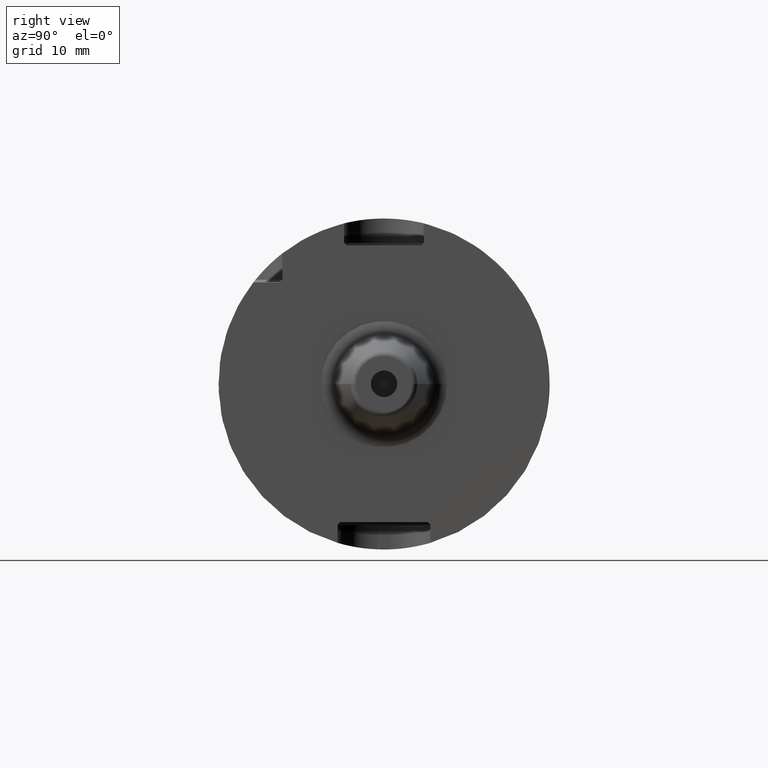
[diagram: clean part render]
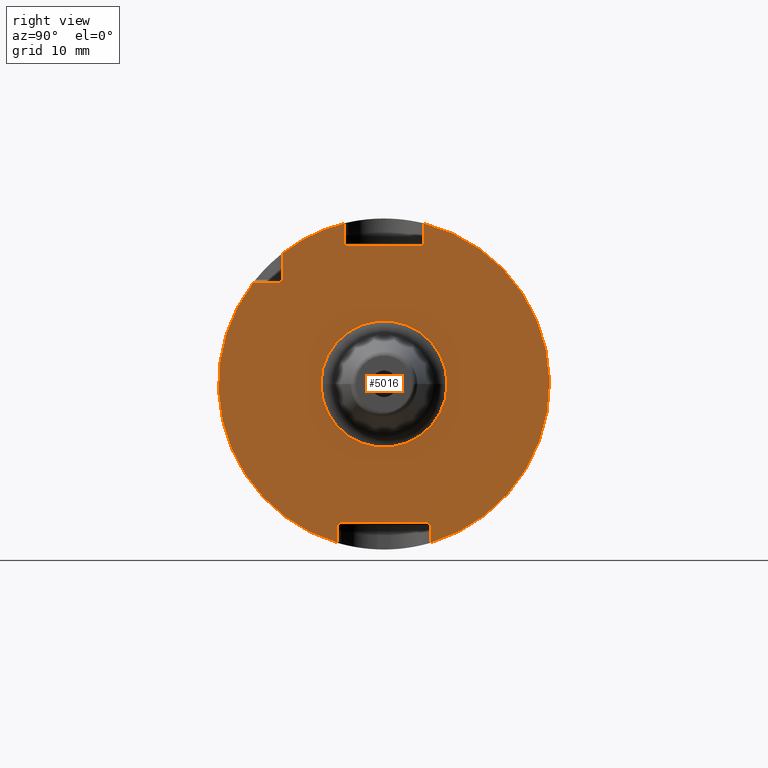
[diagram: same view with one face highlighted and labeled with its STEP entity id]
A machine part, right view. The second image highlights one B-rep face of the part: STEP entity #5016.
In plain terms, the highlighted planar face has unit normal (1, 0, 0).
Its self-contained STEP definition (entity closure, byte-faithful):
#1010=CARTESIAN_POINT('',(2.595E1,0.E0,0.E0));
#1011=DIRECTION('',(1.E0,0.E0,0.E0));
#1012=DIRECTION('',(0.E0,-2.407E-1,9.705995621264E-1));
#1013=AXIS2_PLACEMENT_3D('',#1010,#1011,#1012);
#1019=CARTESIAN_POINT('',(2.595E1,0.E0,0.E0));
#1020=DIRECTION('',(1.E0,0.E0,0.E0));
#1021=DIRECTION('',(0.E0,-7.893060243024E-1,6.14E-1));
#1022=AXIS2_PLACEMENT_3D('',#1019,#1020,#1021);
#1046=CARTESIAN_POINT('',(2.595E1,0.E0,0.E0));
#1047=DIRECTION('',(1.E0,0.E0,0.E0));
#1048=DIRECTION('',(0.E0,2.807E-1,-9.597955563556E-1));
#1049=AXIS2_PLACEMENT_3D('',#1046,#1047,#1048);
#1380=DIRECTION('',(0.E0,7.071067811865E-1,-7.071067811865E-1));
#1381=VECTOR('',#1380,5.656854249492E-1);
#1382=CARTESIAN_POINT('',(2.595E1,6.6175E0,-2.09E1));
#1383=LINE('',#1382,#1381);
#1495=DIRECTION('',(0.E0,-7.071067811865E-1,-7.071067811865E-1));
#1496=VECTOR('',#1495,5.656854249492E-1);
#1497=CARTESIAN_POINT('',(2.595E1,6.0175E0,2.13E1));
#1498=LINE('',#1497,#1496);
#1617=DIRECTION('',(0.E0,7.071067811866E-1,7.071067811865E-1));
#1618=VECTOR('',#1617,5.656854249492E-1);
#1619=CARTESIAN_POINT('',(2.595E1,-7.0175E0,-2.13E1));
#1620=LINE('',#1619,#1618);
#1689=DIRECTION('',(0.E0,1.E0,0.E0));
#1690=VECTOR('',#1689,3.982650607559E0);
#1691=CARTESIAN_POINT('',(2.595E1,-1.973265060756E1,1.535E1));
#1692=LINE('',#1691,#1690);
#1693=DIRECTION('',(0.E0,0.E0,-1.E0));
#1694=VECTOR('',#1693,3.982650607559E0);
#1695=CARTESIAN_POINT('',(2.595E1,-1.535E1,1.973265060756E1));
#1696=LINE('',#1695,#1694);
#1697=DIRECTION('',(0.E0,0.E0,-1.E0));
#1698=VECTOR('',#1697,2.964989053161E0);
#1699=CARTESIAN_POINT('',(2.595E1,-6.0175E0,2.426498905316E1));
#1700=LINE('',#1699,#1698);
#1701=DIRECTION('',(0.E0,1.E0,0.E0));
#1702=VECTOR('',#1701,1.1235E1);
#1703=CARTESIAN_POINT('',(2.595E1,-5.6175E0,2.09E1));
#1704=LINE('',#1703,#1702);
#1705=DIRECTION('',(0.E0,0.E0,-1.E0));
#1706=VECTOR('',#1705,2.964989053161E0);
#1707=CARTESIAN_POINT('',(2.595E1,6.0175E0,2.426498905316E1));
#1708=LINE('',#1707,#1706);
#1709=DIRECTION('',(0.E0,0.E0,1.E0));
#1710=VECTOR('',#1709,2.694888908891E0);
#1711=CARTESIAN_POINT('',(2.595E1,7.0175E0,-2.399488890889E1));
#1712=LINE('',#1711,#1710);
#1713=DIRECTION('',(0.E0,-1.E0,0.E0));
#1714=VECTOR('',#1713,1.3235E1);
#1715=CARTESIAN_POINT('',(2.595E1,6.6175E0,-2.09E1));
#1716=LINE('',#1715,#1714);
#1717=DIRECTION('',(0.E0,0.E0,1.E0));
#1718=VECTOR('',#1717,2.694888908891E0);
#1719=CARTESIAN_POINT('',(2.595E1,-7.0175E0,-2.399488890889E1));
#1720=LINE('',#1719,#1718);
#1721=CARTESIAN_POINT('',(2.595E1,0.E0,0.E0));
#1722=DIRECTION('',(1.E0,0.E0,0.E0));
#1723=DIRECTION('',(0.E0,-1.E0,0.E0));
#1724=AXIS2_PLACEMENT_3D('',#1721,#1722,#1723);
#1726=CARTESIAN_POINT('',(2.595E1,0.E0,0.E0));
#1727=DIRECTION('',(1.E0,0.E0,0.E0));
#1728=DIRECTION('',(0.E0,1.E0,0.E0));
#1729=AXIS2_PLACEMENT_3D('',#1726,#1727,#1728);
#1854=DIRECTION('',(0.E0,-7.071067811865E-1,-7.071067811865E-1));
#1855=VECTOR('',#1854,5.656854249492E-1);
#1856=CARTESIAN_POINT('',(2.595E1,-1.535E1,1.575E1));
#1857=LINE('',#1856,#1855);
#1875=DIRECTION('',(0.E0,-7.071067811865E-1,7.071067811865E-1));
#1876=VECTOR('',#1875,5.656854249492E-1);
#1877=CARTESIAN_POINT('',(2.595E1,-5.6175E0,2.09E1));
#1878=LINE('',#1877,#1876);
#3016=CARTESIAN_POINT('',(2.595E1,-5.6175E0,2.09E1));
#3017=CARTESIAN_POINT('',(2.595E1,-6.0175E0,2.13E1));
#3018=VERTEX_POINT('',#3016);
#3019=VERTEX_POINT('',#3017);
#3020=CARTESIAN_POINT('',(2.595E1,6.0175E0,2.13E1));
#3021=CARTESIAN_POINT('',(2.595E1,5.6175E0,2.09E1));
#3022=VERTEX_POINT('',#3020);
#3023=VERTEX_POINT('',#3021);
#3048=CARTESIAN_POINT('',(2.595E1,6.6175E0,-2.09E1));
#3049=CARTESIAN_POINT('',(2.595E1,7.0175E0,-2.13E1));
#3050=VERTEX_POINT('',#3048);
#3051=VERTEX_POINT('',#3049);
#3052=CARTESIAN_POINT('',(2.595E1,-7.0175E0,-2.13E1));
#3053=CARTESIAN_POINT('',(2.595E1,-6.6175E0,-2.09E1));
#3054=VERTEX_POINT('',#3052);
#3055=VERTEX_POINT('',#3053);
#3066=CARTESIAN_POINT('',(2.595E1,-1.535E1,1.575E1));
#3067=CARTESIAN_POINT('',(2.595E1,-1.575E1,1.535E1));
#3068=VERTEX_POINT('',#3066);
#3069=VERTEX_POINT('',#3067);
#3094=CARTESIAN_POINT('',(2.595E1,-1.973265060756E1,1.535E1));
#3095=VERTEX_POINT('',#3094);
#3096=CARTESIAN_POINT('',(2.595E1,-1.535E1,1.973265060756E1));
#3097=VERTEX_POINT('',#3096);
#3134=CARTESIAN_POINT('',(2.595E1,6.0175E0,2.426498905316E1));
#3135=VERTEX_POINT('',#3134);
#3136=CARTESIAN_POINT('',(2.595E1,-7.0175E0,-2.399488890889E1));
#3137=VERTEX_POINT('',#3136);
#3138=CARTESIAN_POINT('',(2.595E1,-6.0175E0,2.426498905316E1));
#3139=VERTEX_POINT('',#3138);
#3140=CARTESIAN_POINT('',(2.595E1,7.0175E0,-2.399488890889E1));
#3141=VERTEX_POINT('',#3140);
#3200=CARTESIAN_POINT('',(2.595E1,-9.528574100695E0,0.E0));
#3201=CARTESIAN_POINT('',(2.595E1,9.528574100695E0,0.E0));
#3202=VERTEX_POINT('',#3200);
#3203=VERTEX_POINT('',#3201);
#4983=CARTESIAN_POINT('',(2.595E1,0.E0,0.E0));
#4984=DIRECTION('',(1.E0,0.E0,0.E0));
#4985=DIRECTION('',(0.E0,-1.E0,0.E0));
#4986=AXIS2_PLACEMENT_3D('',#4983,#4984,#4985);
#4987=PLANE('',#4986);
#4989=ORIENTED_EDGE('',*,*,#4988,.T.);
#4991=ORIENTED_EDGE('',*,*,#4990,.F.);
#4993=ORIENTED_EDGE('',*,*,#4992,.F.);
#4994=ORIENTED_EDGE('',*,*,#4259,.F.);
#4995=ORIENTED_EDGE('',*,*,#4448,.T.);
#4997=ORIENTED_EDGE('',*,*,#4996,.F.);
#4998=ORIENTED_EDGE('',*,*,#4791,.T.);
#4999=ORIENTED_EDGE('',*,*,#4774,.F.);
#5000=ORIENTED_EDGE('',*,*,#4745,.F.);
#5001=ORIENTED_EDGE('',*,*,#4291,.F.);
#5002=ORIENTED_EDGE('',*,*,#4670,.T.);
#5003=ORIENTED_EDGE('',*,*,#4640,.F.);
#5004=ORIENTED_EDGE('',*,*,#4607,.T.);
#5005=ORIENTED_EDGE('',*,*,#4870,.F.);
#5006=ORIENTED_EDGE('',*,*,#4977,.F.);
#5007=ORIENTED_EDGE('',*,*,#4271,.F.);
#5008=EDGE_LOOP('',(#4989,#4991,#4993,#4994,#4995,#4997,#4998,#4999,#5000,#5001,
#5002,#5003,#5004,#5005,#5006,#5007));
#5009=FACE_OUTER_BOUND('',#5008,.F.);
#5011=ORIENTED_EDGE('',*,*,#5010,.T.);
#5013=ORIENTED_EDGE('',*,*,#5012,.T.);
#5014=EDGE_LOOP('',(#5011,#5013));
#5015=FACE_BOUND('',#5014,.F.);
#5016=ADVANCED_FACE('',(#5009,#5015),#4987,.T.);
#1014=CIRCLE('',#1013,2.5E1);
#1023=CIRCLE('',#1022,2.5E1);
#1050=CIRCLE('',#1049,2.5E1);
#1725=CIRCLE('',#1724,9.528574100695E0);
#1730=CIRCLE('',#1729,9.528574100695E0);
#4259=EDGE_CURVE('',#3139,#3097,#1014,.T.);
#4271=EDGE_CURVE('',#3095,#3137,#1023,.T.);
#4291=EDGE_CURVE('',#3141,#3135,#1050,.T.);
#4448=EDGE_CURVE('',#3139,#3019,#1700,.T.);
#4607=EDGE_CURVE('',#3050,#3055,#1716,.T.);
#4640=EDGE_CURVE('',#3050,#3051,#1383,.T.);
#4670=EDGE_CURVE('',#3141,#3051,#1712,.T.);
#4745=EDGE_CURVE('',#3135,#3022,#1708,.T.);
#4774=EDGE_CURVE('',#3022,#3023,#1498,.T.);
#4791=EDGE_CURVE('',#3018,#3023,#1704,.T.);
#4870=EDGE_CURVE('',#3054,#3055,#1620,.T.);
#4977=EDGE_CURVE('',#3137,#3054,#1720,.T.);
#4988=EDGE_CURVE('',#3095,#3069,#1692,.T.);
#4990=EDGE_CURVE('',#3068,#3069,#1857,.T.);
#4992=EDGE_CURVE('',#3097,#3068,#1696,.T.);
#4996=EDGE_CURVE('',#3018,#3019,#1878,.T.);
#5010=EDGE_CURVE('',#3202,#3203,#1725,.T.);
#5012=EDGE_CURVE('',#3203,#3202,#1730,.T.);